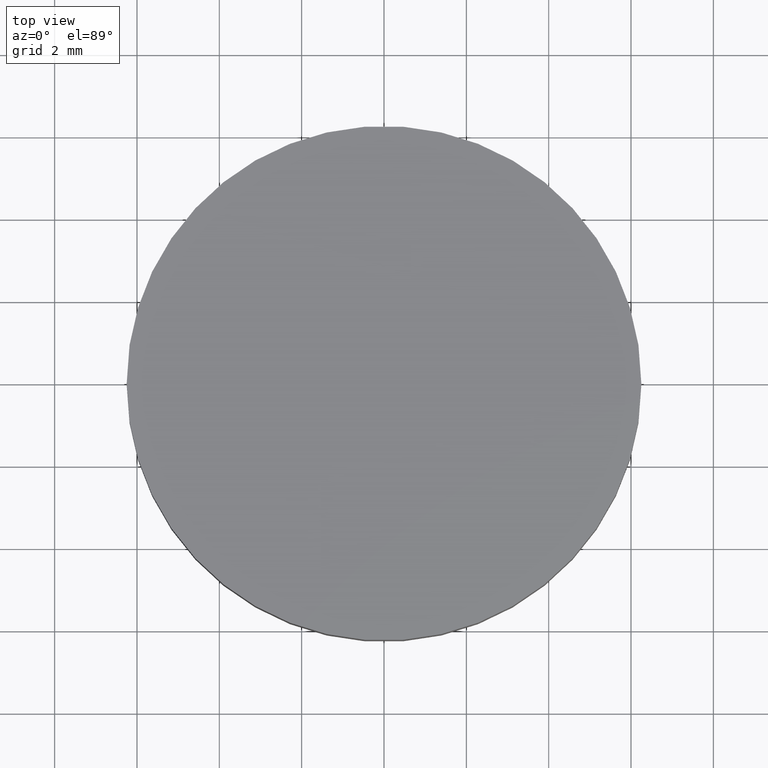
[diagram: clean part render]
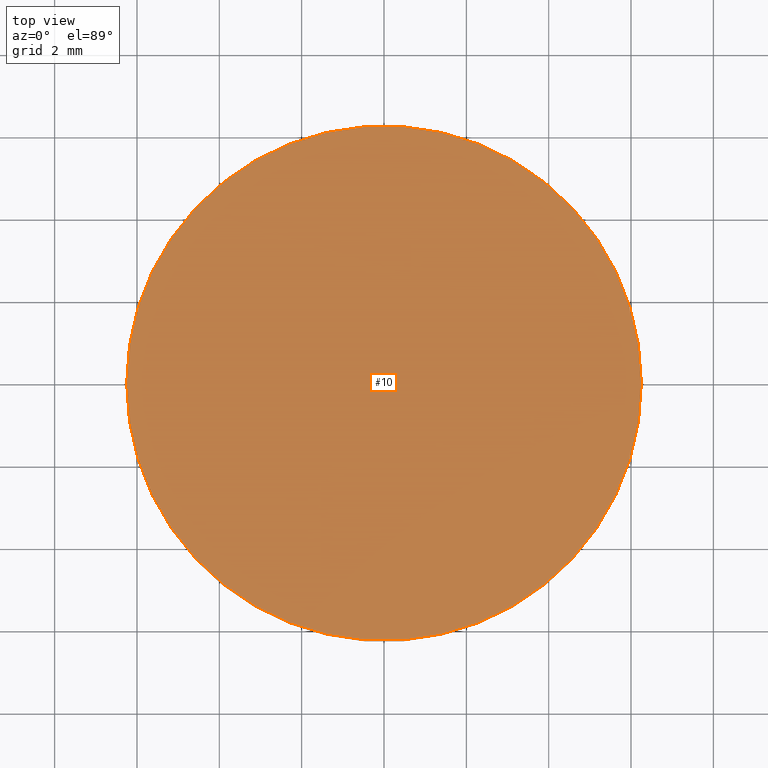
[diagram: same view with one face highlighted and labeled with its STEP entity id]
A machine part, top view. The second image highlights one B-rep face of the part: STEP entity #10.
In plain terms, the highlighted planar face has unit normal (0, 0, 1).
Its self-contained STEP definition (entity closure, byte-faithful):
#7 = VERTEX_POINT ( 'NONE', #8 ) ;
#8 = CARTESIAN_POINT ( 'NONE',  ( -6.250000000000000000, 0.0000000000000000000, 2.000000000000000000 ) ) ;
#10 = ADVANCED_FACE ( 'NONE', ( #79 ), #100, .T. ) ;
#18 = DIRECTION ( 'NONE',  ( 1.000000000000000000, 0.0000000000000000000, -0.0000000000000000000 ) ) ;
#22 = AXIS2_PLACEMENT_3D ( 'NONE', #116, #87, #18 ) ;
#23 = DIRECTION ( 'NONE',  ( 0.0000000000000000000, 0.0000000000000000000, 1.000000000000000000 ) ) ;
#25 = CARTESIAN_POINT ( 'NONE',  ( 6.250000000000000000, 7.654042494670957600E-016, 2.000000000000000000 ) ) ;
#38 = CIRCLE ( 'NONE', #50, 6.250000000000000000 ) ;
#39 = ORIENTED_EDGE ( 'NONE', *, *, #96, .T. ) ;
#49 = ORIENTED_EDGE ( 'NONE', *, *, #139, .T. ) ;
#50 = AXIS2_PLACEMENT_3D ( 'NONE', #112, #23, #57 ) ;
#57 = DIRECTION ( 'NONE',  ( 1.000000000000000000, 0.0000000000000000000, 0.0000000000000000000 ) ) ;
#63 = EDGE_LOOP ( 'NONE', ( #49, #39 ) ) ;
#65 = DIRECTION ( 'NONE',  ( 0.0000000000000000000, 0.0000000000000000000, 1.000000000000000000 ) ) ;
#79 = FACE_OUTER_BOUND ( 'NONE', #63, .T. ) ;
#87 = DIRECTION ( 'NONE',  ( 0.0000000000000000000, 0.0000000000000000000, 1.000000000000000000 ) ) ;
#96 = EDGE_CURVE ( 'NONE', #136, #7, #38, .T. ) ;
#100 = PLANE ( 'NONE',  #22 ) ;
#107 = AXIS2_PLACEMENT_3D ( 'NONE', #131, #65, #119 ) ;
#112 = CARTESIAN_POINT ( 'NONE',  ( 0.0000000000000000000, 0.0000000000000000000, 2.000000000000000000 ) ) ;
#116 = CARTESIAN_POINT ( 'NONE',  ( 0.0000000000000000000, 0.0000000000000000000, 2.000000000000000000 ) ) ;
#119 = DIRECTION ( 'NONE',  ( 1.000000000000000000, 0.0000000000000000000, 0.0000000000000000000 ) ) ;
#131 = CARTESIAN_POINT ( 'NONE',  ( 0.0000000000000000000, 0.0000000000000000000, 2.000000000000000000 ) ) ;
#134 = CIRCLE ( 'NONE', #107, 6.250000000000000000 ) ;
#136 = VERTEX_POINT ( 'NONE', #25 ) ;
#139 = EDGE_CURVE ( 'NONE', #7, #136, #134, .T. ) ;